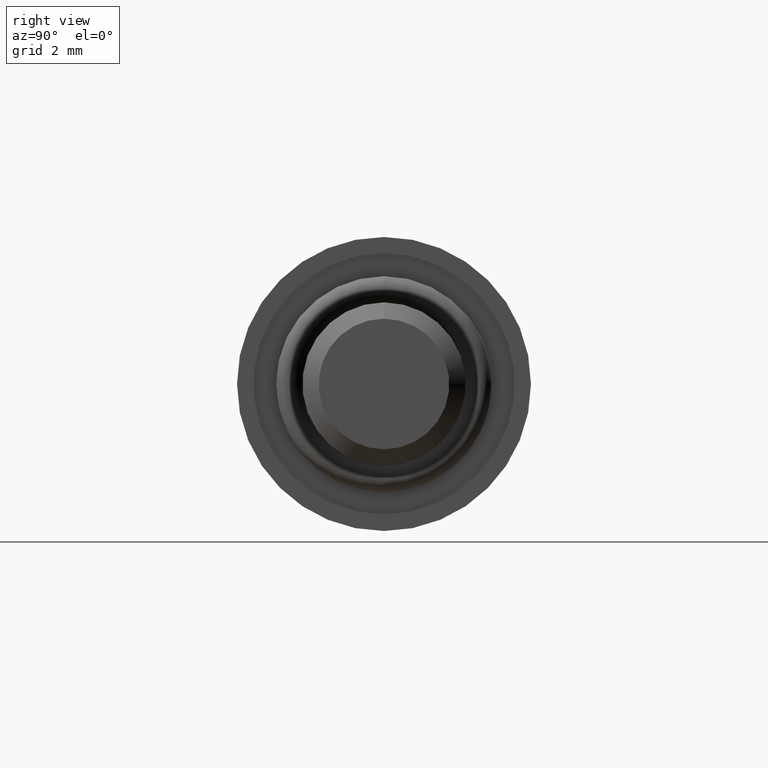
[diagram: clean part render]
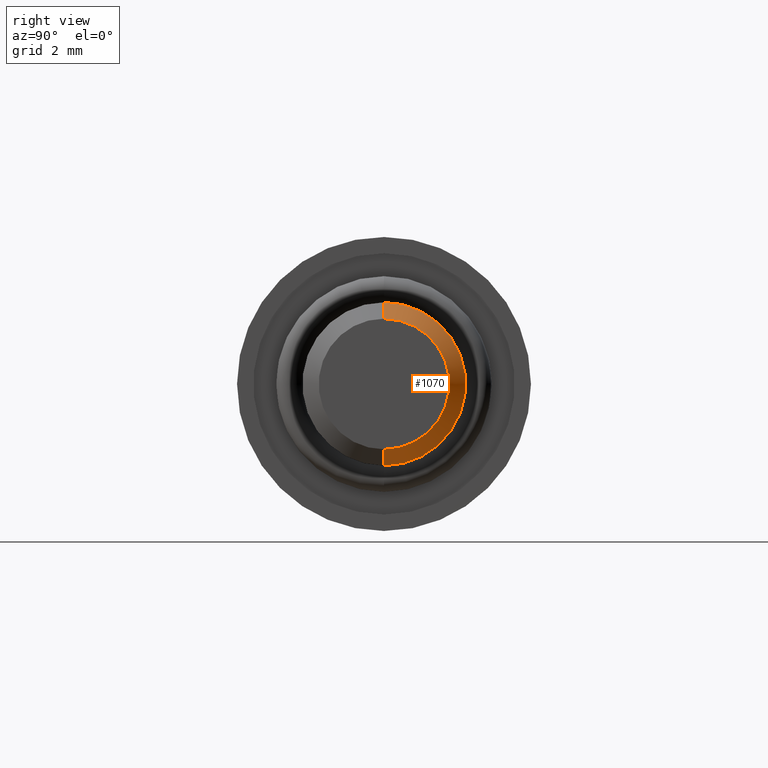
[diagram: same view with one face highlighted and labeled with its STEP entity id]
A machine part, right view. The second image highlights one B-rep face of the part: STEP entity #1070.
In plain terms, the highlighted conical surface has half-angle 45 deg.
Its self-contained STEP definition (entity closure, byte-faithful):
#3 = EDGE_CURVE ( 'NONE', #718, #170, #158, .T. ) ;
#138 = CARTESIAN_POINT ( 'NONE',  ( 14.49999999999999300, 0.0000000000000000000, 2.500000000000000000 ) ) ;
#158 = CIRCLE ( 'NONE', #392, 1.999999999999994900 ) ;
#166 = DIRECTION ( 'NONE',  ( 1.000000000000000000, 0.0000000000000000000, 0.0000000000000000000 ) ) ;
#170 = VERTEX_POINT ( 'NONE', #702 ) ;
#186 = ORIENTED_EDGE ( 'NONE', *, *, #1105, .F. ) ;
#193 = VERTEX_POINT ( 'NONE', #1183 ) ;
#196 = DIRECTION ( 'NONE',  ( -0.7071067811865490200, 0.0000000000000000000, 0.7071067811865460200 ) ) ;
#220 = AXIS2_PLACEMENT_3D ( 'NONE', #984, #995, #490 ) ;
#242 = CIRCLE ( 'NONE', #220, 2.500000000000000000 ) ;
#263 = CARTESIAN_POINT ( 'NONE',  ( 15.00000000000000000, 2.755455298081541300E-016, -1.999999999999994900 ) ) ;
#271 = FACE_OUTER_BOUND ( 'NONE', #556, .T. ) ;
#323 = ORIENTED_EDGE ( 'NONE', *, *, #3, .F. ) ;
#360 = EDGE_CURVE ( 'NONE', #718, #193, #1063, .T. ) ;
#392 = AXIS2_PLACEMENT_3D ( 'NONE', #588, #166, #654 ) ;
#408 = EDGE_CURVE ( 'NONE', #941, #193, #242, .T. ) ;
#418 = DIRECTION ( 'NONE',  ( 0.0000000000000000000, 0.0000000000000000000, 1.000000000000000000 ) ) ;
#444 = DIRECTION ( 'NONE',  ( -1.000000000000000000, 0.0000000000000000000, 0.0000000000000000000 ) ) ;
#471 = CONICAL_SURFACE ( 'NONE', #745, 1.999999999999994900, 0.7853981633974460600 ) ;
#487 = CARTESIAN_POINT ( 'NONE',  ( 15.00000000000000000, 0.0000000000000000000, 1.999999999999994900 ) ) ;
#490 = DIRECTION ( 'NONE',  ( 0.0000000000000000000, 0.0000000000000000000, -1.000000000000000000 ) ) ;
#497 = VECTOR ( 'NONE', #196, 1000.000000000000100 ) ;
#526 = LINE ( 'NONE', #487, #497 ) ;
#556 = EDGE_LOOP ( 'NONE', ( #323, #1189, #1223, #186 ) ) ;
#588 = CARTESIAN_POINT ( 'NONE',  ( 15.00000000000000000, 0.0000000000000000000, 0.0000000000000000000 ) ) ;
#654 = DIRECTION ( 'NONE',  ( 0.0000000000000000000, 0.0000000000000000000, -1.000000000000000000 ) ) ;
#702 = CARTESIAN_POINT ( 'NONE',  ( 15.00000000000000000, 0.0000000000000000000, 1.999999999999994900 ) ) ;
#718 = VERTEX_POINT ( 'NONE', #263 ) ;
#745 = AXIS2_PLACEMENT_3D ( 'NONE', #1134, #444, #418 ) ;
#788 = VECTOR ( 'NONE', #1177, 1000.000000000000100 ) ;
#941 = VERTEX_POINT ( 'NONE', #138 ) ;
#984 = CARTESIAN_POINT ( 'NONE',  ( 14.49999999999999300, 0.0000000000000000000, 0.0000000000000000000 ) ) ;
#995 = DIRECTION ( 'NONE',  ( -1.000000000000000000, 0.0000000000000000000, 0.0000000000000000000 ) ) ;
#1063 = LINE ( 'NONE', #1173, #788 ) ;
#1070 = ADVANCED_FACE ( 'NONE', ( #271 ), #471, .T. ) ;
#1105 = EDGE_CURVE ( 'NONE', #170, #941, #526, .T. ) ;
#1134 = CARTESIAN_POINT ( 'NONE',  ( 15.00000000000000000, 0.0000000000000000000, 0.0000000000000000000 ) ) ;
#1173 = CARTESIAN_POINT ( 'NONE',  ( 15.00000000000000000, 2.449293598294700000E-016, -1.999999999999994900 ) ) ;
#1177 = DIRECTION ( 'NONE',  ( -0.7071067811865490200, 8.659560562354913100E-017, -0.7071067811865460200 ) ) ;
#1183 = CARTESIAN_POINT ( 'NONE',  ( 14.49999999999999300, 3.061616997868383100E-016, -2.500000000000000000 ) ) ;
#1189 = ORIENTED_EDGE ( 'NONE', *, *, #360, .T. ) ;
#1223 = ORIENTED_EDGE ( 'NONE', *, *, #408, .F. ) ;